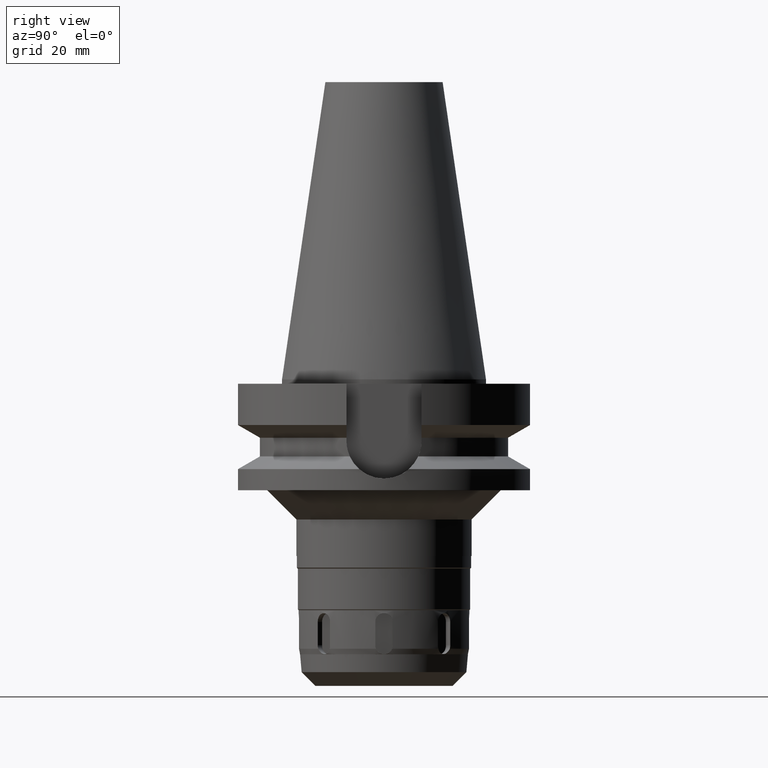
[diagram: clean part render]
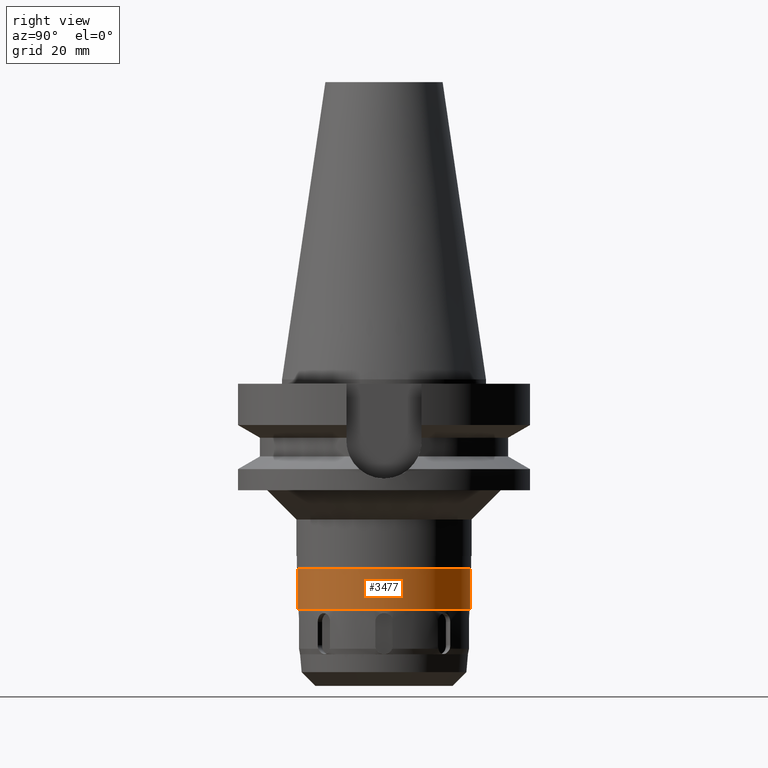
[diagram: same view with one face highlighted and labeled with its STEP entity id]
A machine part, right view. The second image highlights one B-rep face of the part: STEP entity #3477.
In plain terms, the highlighted cylindrical surface (partial cylindrical patch) has radius 29.5 mm, axis along (0, 0, -1).
Its self-contained STEP definition (entity closure, byte-faithful):
#1175=CARTESIAN_POINT('',(0.E0,0.E0,-7.88E1));
#1176=DIRECTION('',(0.E0,0.E0,1.E0));
#1177=DIRECTION('',(0.E0,-1.E0,0.E0));
#1178=AXIS2_PLACEMENT_3D('',#1175,#1176,#1177);
#1206=DIRECTION('',(0.E0,0.E0,-1.E0));
#1207=VECTOR('',#1206,1.395E1);
#1208=CARTESIAN_POINT('',(0.E0,-2.95E1,-6.485E1));
#1209=LINE('',#1208,#1207);
#1213=DIRECTION('',(0.E0,0.E0,-1.E0));
#1214=VECTOR('',#1213,1.395E1);
#1215=CARTESIAN_POINT('',(0.E0,2.95E1,-6.485E1));
#1216=LINE('',#1215,#1214);
#1227=CARTESIAN_POINT('',(0.E0,0.E0,-6.485E1));
#1228=DIRECTION('',(0.E0,0.E0,-1.E0));
#1229=DIRECTION('',(0.E0,1.E0,0.E0));
#1230=AXIS2_PLACEMENT_3D('',#1227,#1228,#1229);
#2592=CARTESIAN_POINT('',(0.E0,2.95E1,-7.88E1));
#2593=VERTEX_POINT('',#2592);
#2594=CARTESIAN_POINT('',(0.E0,-2.95E1,-7.88E1));
#2595=VERTEX_POINT('',#2594);
#2596=CARTESIAN_POINT('',(0.E0,2.95E1,-6.485E1));
#2597=VERTEX_POINT('',#2596);
#2598=CARTESIAN_POINT('',(0.E0,-2.95E1,-6.485E1));
#2599=VERTEX_POINT('',#2598);
#3465=CARTESIAN_POINT('',(0.E0,2.597965719711E-14,1.1214E2));
#3466=DIRECTION('',(0.E0,0.E0,-1.E0));
#3467=DIRECTION('',(0.E0,-1.E0,0.E0));
#3468=AXIS2_PLACEMENT_3D('',#3465,#3466,#3467);
#3469=CYLINDRICAL_SURFACE('',#3468,2.95E1);
#3470=ORIENTED_EDGE('',*,*,#3455,.T.);
#3471=ORIENTED_EDGE('',*,*,#3432,.F.);
#3472=ORIENTED_EDGE('',*,*,#3459,.F.);
#3474=ORIENTED_EDGE('',*,*,#3473,.F.);
#3475=EDGE_LOOP('',(#3470,#3471,#3472,#3474));
#3476=FACE_OUTER_BOUND('',#3475,.F.);
#1179=CIRCLE('',#1178,2.95E1);
#1231=CIRCLE('',#1230,2.95E1);
#3432=EDGE_CURVE('',#2595,#2593,#1179,.T.);
#3455=EDGE_CURVE('',#2597,#2593,#1216,.T.);
#3459=EDGE_CURVE('',#2599,#2595,#1209,.T.);
#3473=EDGE_CURVE('',#2597,#2599,#1231,.T.);
#3477=ADVANCED_FACE('',(#3476),#3469,.T.);